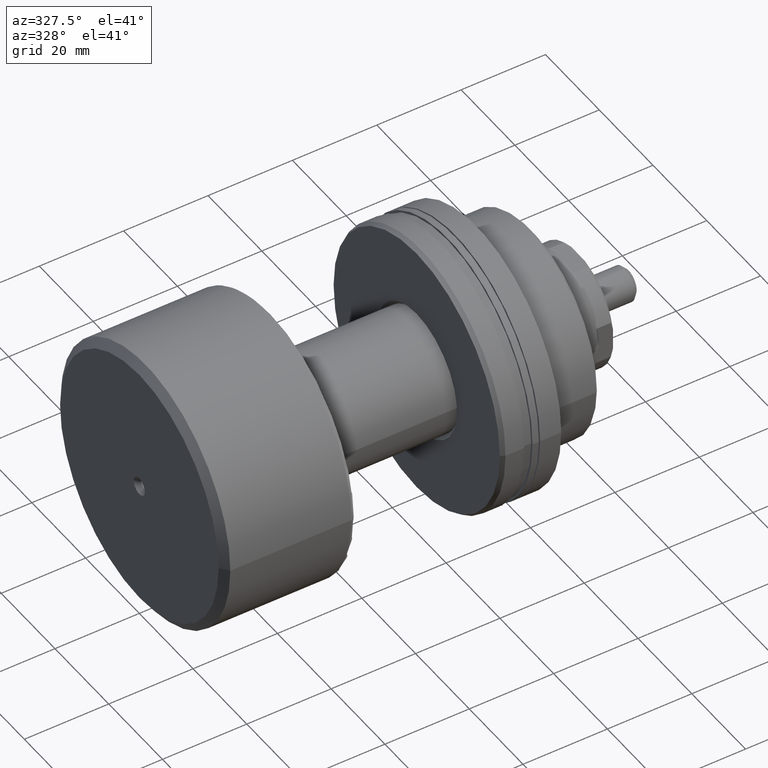
[diagram: clean part render]
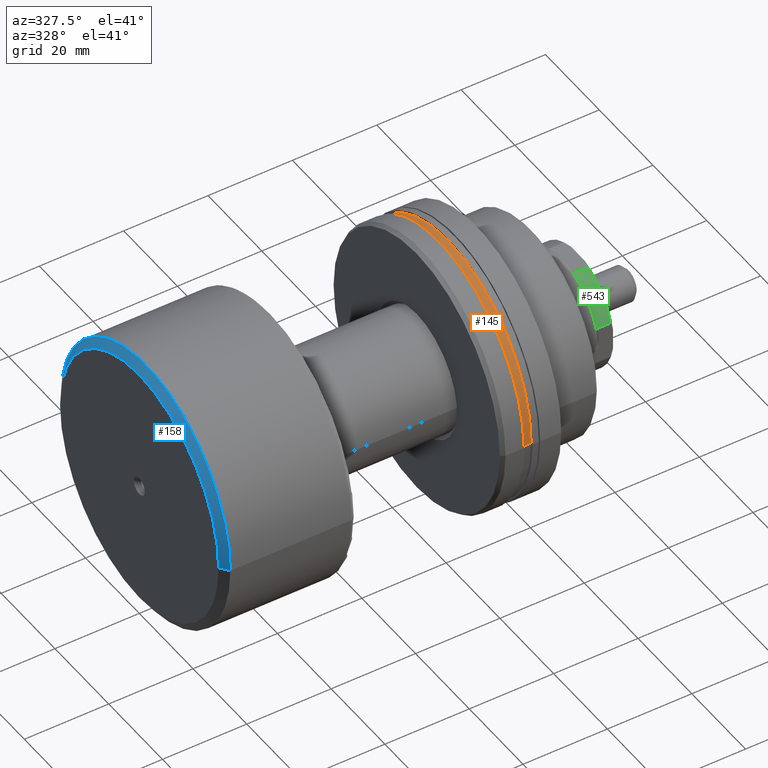
[diagram: same view with three faces highlighted in distinct colors, each labeled with its STEP entity id]
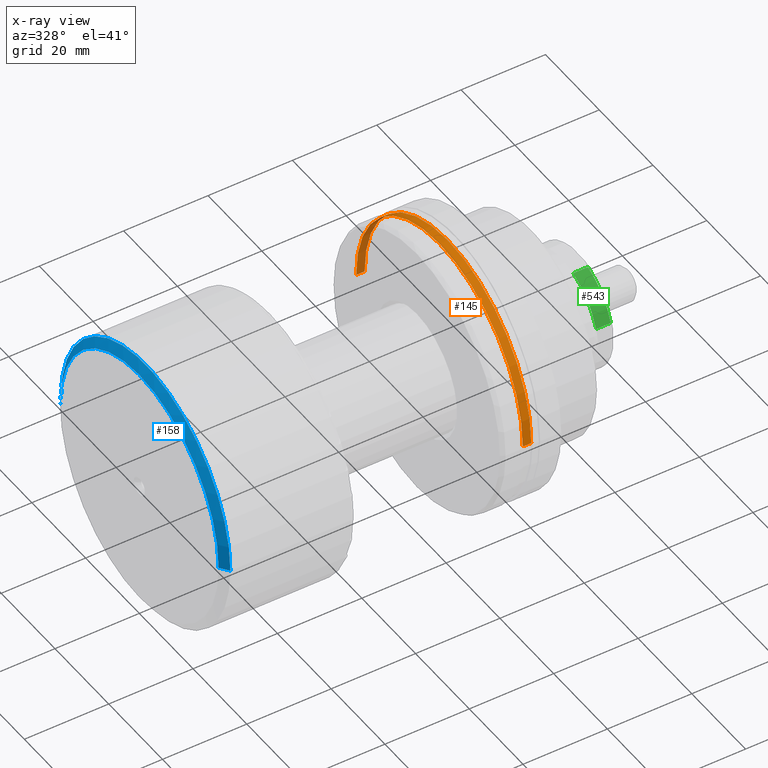
[diagram: x-ray of the same camera — body ghosted, the three highlighted faces saturated]
A machine part, auxiliary view with three faces highlighted in distinct colors.
The next image is the same camera in x-ray (body ghosted, the three faces saturated) — at least one of them is partly hidden behind the body in this view.
Their STEP definitions:

[orange] entity #145 — the highlighted cylindrical surface (partial cylindrical patch) has radius 31 mm, axis along (1, 0, 0).
#16 = ORIENTED_EDGE ( 'NONE', *, *, #300, .F. ) ;
#30 = VERTEX_POINT ( 'NONE', #1813 ) ;
#72 = DIRECTION ( 'NONE',  ( 1.000000000000000000, 1.931394410353556421E-15, -0.000000000000000000 ) ) ;
#119 = ORIENTED_EDGE ( 'NONE', *, *, #1238, .T. ) ;
#145 = ADVANCED_FACE ( 'NONE', ( #1271 ), #609, .T. ) ;
#300 = EDGE_CURVE ( 'NONE', #30, #935, #2352, .T. ) ;
#365 = EDGE_LOOP ( 'NONE', ( #1426, #119, #1185, #16 ) ) ;
#488 = AXIS2_PLACEMENT_3D ( 'NONE', #788, #1041, #1457 ) ;
#609 = CYLINDRICAL_SURFACE ( 'NONE', #488, 31.00000000000000000 ) ;
#788 = CARTESIAN_POINT ( 'NONE',  ( -30.28002276692732408, 0.000000000000000000, 0.000000000000000000 ) ) ;
#824 = DIRECTION ( 'NONE',  ( -1.902599941393917815E-15, 1.000000000000000000, 0.000000000000000000 ) ) ;
#825 = CARTESIAN_POINT ( 'NONE',  ( -24.80000000000012150, 31.00000000000001421, 0.000000000000000000 ) ) ;
#835 = DIRECTION ( 'NONE',  ( 1.000000000000000000, 1.931394410353556421E-15, -0.000000000000000000 ) ) ;
#919 = CARTESIAN_POINT ( 'NONE',  ( -30.28002276692726369, -31.00000000000000000, 3.796405077356795115E-15 ) ) ;
#935 = VERTEX_POINT ( 'NONE', #825 ) ;
#937 = VERTEX_POINT ( 'NONE', #1660 ) ;
#1009 = CARTESIAN_POINT ( 'NONE',  ( -26.80878161770243651, 6.704335752602198479E-15, 0.000000000000000000 ) ) ;
#1041 = DIRECTION ( 'NONE',  ( 1.000000000000000000, 1.931394410353556421E-15, -0.000000000000000000 ) ) ;
#1133 = VECTOR ( 'NONE', #72, 1000.000000000000000 ) ;
#1185 = ORIENTED_EDGE ( 'NONE', *, *, #2220, .F. ) ;
#1238 = EDGE_CURVE ( 'NONE', #2305, #937, #2444, .T. ) ;
#1271 = FACE_OUTER_BOUND ( 'NONE', #365, .T. ) ;
#1368 = CIRCLE ( 'NONE', #1849, 31.00000000000000355 ) ;
#1426 = ORIENTED_EDGE ( 'NONE', *, *, #1864, .T. ) ;
#1457 = DIRECTION ( 'NONE',  ( -1.902599941393917420E-15, 1.000000000000000000, 0.000000000000000000 ) ) ;
#1587 = AXIS2_PLACEMENT_3D ( 'NONE', #1009, #1856, #824 ) ;
#1599 = CARTESIAN_POINT ( 'NONE',  ( -26.80878161770237966, -30.99999999999998934, 3.796405077356795115E-15 ) ) ;
#1660 = CARTESIAN_POINT ( 'NONE',  ( -24.80000000000000426, -30.99999999999999289, 3.796405077356795115E-15 ) ) ;
#1753 = VECTOR ( 'NONE', #835, 1000.000000000000000 ) ;
#1813 = CARTESIAN_POINT ( 'NONE',  ( -26.80878161770249690, 31.00000000000000355, 0.000000000000000000 ) ) ;
#1849 = AXIS2_PLACEMENT_3D ( 'NONE', #2478, #2230, #2669 ) ;
#1856 = DIRECTION ( 'NONE',  ( 1.000000000000000000, 1.931394410353556421E-15, -0.000000000000000000 ) ) ;
#1864 = EDGE_CURVE ( 'NONE', #30, #2305, #2248, .T. ) ;
#2008 = CARTESIAN_POINT ( 'NONE',  ( -30.28002276692738448, 31.00000000000000000, 0.000000000000000000 ) ) ;
#2220 = EDGE_CURVE ( 'NONE', #935, #937, #1368, .T. ) ;
#2230 = DIRECTION ( 'NONE',  ( 1.000000000000000000, 1.931394410353556421E-15, -0.000000000000000000 ) ) ;
#2248 = CIRCLE ( 'NONE', #1587, 30.99999999999999645 ) ;
#2305 = VERTEX_POINT ( 'NONE', #1599 ) ;
#2352 = LINE ( 'NONE', #2008, #1753 ) ;
#2444 = LINE ( 'NONE', #919, #1133 ) ;
#2478 = CARTESIAN_POINT ( 'NONE',  ( -24.80000000000006111, 1.058408534065354328E-14, 0.000000000000000000 ) ) ;
#2669 = DIRECTION ( 'NONE',  ( -1.902599941393917420E-15, 1.000000000000000000, 0.000000000000000000 ) ) ;

[blue] entity #158 — the highlighted conical surface has half-angle 53.13 deg.
#29 = CARTESIAN_POINT ( 'NONE',  ( 1.500000000000003775, -31.50000000000000000, 3.857637417314162689E-15 ) ) ;
#143 = CARTESIAN_POINT ( 'NONE',  ( 1.500000000000003331, 31.50000000000000000, 0.000000000000000000 ) ) ;
#158 = ADVANCED_FACE ( 'NONE', ( #2077 ), #1214, .T. ) ;
#161 = CARTESIAN_POINT ( 'NONE',  ( 3.297193072474317133E-15, 3.526487535044219306E-32, 0.000000000000000000 ) ) ;
#257 = ORIENTED_EDGE ( 'NONE', *, *, #1783, .T. ) ;
#268 = DIRECTION ( 'NONE',  ( 0.5999999999999996447, -0.8000000000000002665, 9.797174393178828616E-17 ) ) ;
#345 = DIRECTION ( 'NONE',  ( -1.000000000000000000, -1.069542322069065801E-17, -0.000000000000000000 ) ) ;
#359 = DIRECTION ( 'NONE',  ( 1.000000000000000000, 1.069542322069065801E-17, 0.000000000000000000 ) ) ;
#408 = CIRCLE ( 'NONE', #2062, 31.50000000000000000 ) ;
#434 = EDGE_LOOP ( 'NONE', ( #2215, #257, #526, #513 ) ) ;
#448 = VERTEX_POINT ( 'NONE', #143 ) ;
#513 = ORIENTED_EDGE ( 'NONE', *, *, #640, .F. ) ;
#526 = ORIENTED_EDGE ( 'NONE', *, *, #1166, .T. ) ;
#640 = EDGE_CURVE ( 'NONE', #822, #448, #2314, .T. ) ;
#732 = LINE ( 'NONE', #1345, #2606 ) ;
#765 = VERTEX_POINT ( 'NONE', #29 ) ;
#779 = CARTESIAN_POINT ( 'NONE',  ( 3.297193072474317133E-15, 3.526487535044219306E-32, 0.000000000000000000 ) ) ;
#807 = CIRCLE ( 'NONE', #1671, 29.50000000000000000 ) ;
#822 = VERTEX_POINT ( 'NONE', #905 ) ;
#896 = VECTOR ( 'NONE', #1264, 1000.000000000000000 ) ;
#905 = CARTESIAN_POINT ( 'NONE',  ( 2.981678087463943057E-15, 29.50000000000000000, 0.000000000000000000 ) ) ;
#942 = DIRECTION ( 'NONE',  ( -1.000000000000000000, -1.069542322069065801E-17, -0.000000000000000000 ) ) ;
#1150 = CARTESIAN_POINT ( 'NONE',  ( 1.500000000000003553, 1.604313483103602168E-17, 0.000000000000000000 ) ) ;
#1166 = EDGE_CURVE ( 'NONE', #765, #448, #408, .T. ) ;
#1214 = CONICAL_SURFACE ( 'NONE', #2010, 29.50000000000000000, 0.9272952180016126311 ) ;
#1264 = DIRECTION ( 'NONE',  ( 0.5999999999999996447, 0.8000000000000002665, 0.000000000000000000 ) ) ;
#1345 = CARTESIAN_POINT ( 'NONE',  ( 3.612708057484691604E-15, -29.50000000000000000, 3.612708057484691604E-15 ) ) ;
#1422 = DIRECTION ( 'NONE',  ( 1.376764663473656463E-17, -1.000000000000000000, 0.000000000000000000 ) ) ;
#1671 = AXIS2_PLACEMENT_3D ( 'NONE', #779, #345, #1838 ) ;
#1688 = CARTESIAN_POINT ( 'NONE',  ( 3.612708057484691604E-15, -29.50000000000000000, 3.735172737399426752E-15 ) ) ;
#1783 = EDGE_CURVE ( 'NONE', #2121, #765, #732, .T. ) ;
#1838 = DIRECTION ( 'NONE',  ( 1.069542322069065647E-17, -1.000000000000000000, 0.000000000000000000 ) ) ;
#1878 = EDGE_CURVE ( 'NONE', #2121, #822, #807, .T. ) ;
#2010 = AXIS2_PLACEMENT_3D ( 'NONE', #161, #359, #2486 ) ;
#2062 = AXIS2_PLACEMENT_3D ( 'NONE', #1150, #942, #1422 ) ;
#2077 = FACE_OUTER_BOUND ( 'NONE', #434, .T. ) ;
#2121 = VERTEX_POINT ( 'NONE', #1688 ) ;
#2215 = ORIENTED_EDGE ( 'NONE', *, *, #1878, .F. ) ;
#2314 = LINE ( 'NONE', #2543, #896 ) ;
#2486 = DIRECTION ( 'NONE',  ( -1.069542322069065647E-17, 1.000000000000000000, 0.000000000000000000 ) ) ;
#2543 = CARTESIAN_POINT ( 'NONE',  ( 2.981678087463943057E-15, 29.50000000000000000, 0.000000000000000000 ) ) ;
#2606 = VECTOR ( 'NONE', #268, 1000.000000000000000 ) ;

[green] entity #543 — the highlighted cylindrical surface (partial cylindrical patch) has radius 13.75 mm, axis along (-1, -0, -0).
#127 = DIRECTION ( 'NONE',  ( 1.069542322069065801E-17, -1.000000000000000000, 0.000000000000000000 ) ) ;
#354 = EDGE_CURVE ( 'NONE', #1631, #2701, #1298, .T. ) ;
#358 = CIRCLE ( 'NONE', #1888, 13.75000000000000178 ) ;
#543 = ADVANCED_FACE ( 'NONE', ( #572 ), #1626, .T. ) ;
#572 = FACE_OUTER_BOUND ( 'NONE', #1416, .T. ) ;
#574 = AXIS2_PLACEMENT_3D ( 'NONE', #1449, #1424, #127 ) ;
#826 = DIRECTION ( 'NONE',  ( -1.000000000000000000, -1.069542322069054245E-17, -0.000000000000000000 ) ) ;
#901 = CARTESIAN_POINT ( 'NONE',  ( 99.99999999999978684, -13.00000000000112621, 4.479118216795496821 ) ) ;
#918 = DIRECTION ( 'NONE',  ( 1.000000000000000000, -1.657264799492230625E-14, -0.000000000000000000 ) ) ;
#947 = AXIS2_PLACEMENT_3D ( 'NONE', #1385, #2426, #970 ) ;
#970 = DIRECTION ( 'NONE',  ( 0.000000000000000000, -1.000000000000000000, 0.000000000000000000 ) ) ;
#1090 = CARTESIAN_POINT ( 'NONE',  ( 103.5000000000000142, -4.479118216794137020, 13.00000000000052935 ) ) ;
#1247 = ORIENTED_EDGE ( 'NONE', *, *, #354, .T. ) ;
#1298 = LINE ( 'NONE', #2567, #2015 ) ;
#1307 = ORIENTED_EDGE ( 'NONE', *, *, #1749, .F. ) ;
#1371 = ORIENTED_EDGE ( 'NONE', *, *, #2547, .F. ) ;
#1385 = CARTESIAN_POINT ( 'NONE',  ( 100.0000000000001421, 1.069542322069067372E-15, 0.000000000000000000 ) ) ;
#1415 = EDGE_CURVE ( 'NONE', #2701, #2614, #358, .T. ) ;
#1416 = EDGE_LOOP ( 'NONE', ( #1247, #2292, #1371, #1307 ) ) ;
#1424 = DIRECTION ( 'NONE',  ( -1.000000000000000000, -1.069542322069065801E-17, -0.000000000000000000 ) ) ;
#1449 = CARTESIAN_POINT ( 'NONE',  ( 0.000000000000000000, 0.000000000000000000, 0.000000000000000000 ) ) ;
#1490 = CARTESIAN_POINT ( 'NONE',  ( 99.99999999999994316, -4.479118216794079288, 13.00000000000052935 ) ) ;
#1532 = LINE ( 'NONE', #2598, #1674 ) ;
#1626 = CYLINDRICAL_SURFACE ( 'NONE', #574, 13.75000000000000178 ) ;
#1631 = VERTEX_POINT ( 'NONE', #901 ) ;
#1650 = CARTESIAN_POINT ( 'NONE',  ( 103.5000000000000142, 1.106976303341483222E-15, 0.000000000000000000 ) ) ;
#1674 = VECTOR ( 'NONE', #918, 1000.000000000000000 ) ;
#1691 = DIRECTION ( 'NONE',  ( 0.000000000000000000, -1.000000000000000000, 0.000000000000000000 ) ) ;
#1749 = EDGE_CURVE ( 'NONE', #1631, #2437, #2245, .T. ) ;
#1888 = AXIS2_PLACEMENT_3D ( 'NONE', #1650, #826, #1691 ) ;
#2015 = VECTOR ( 'NONE', #2580, 1000.000000000000000 ) ;
#2245 = CIRCLE ( 'NONE', #947, 13.75000000000000178 ) ;
#2292 = ORIENTED_EDGE ( 'NONE', *, *, #1415, .T. ) ;
#2426 = DIRECTION ( 'NONE',  ( -1.000000000000000000, -1.069542322069065801E-17, -0.000000000000000000 ) ) ;
#2437 = VERTEX_POINT ( 'NONE', #1490 ) ;
#2473 = CARTESIAN_POINT ( 'NONE',  ( 103.5000000000000142, -13.00000000000118483, 4.479118216795496821 ) ) ;
#2547 = EDGE_CURVE ( 'NONE', #2437, #2614, #1532, .T. ) ;
#2567 = CARTESIAN_POINT ( 'NONE',  ( 99.99999999999978684, -13.00000000000112621, 4.479118216795496821 ) ) ;
#2580 = DIRECTION ( 'NONE',  ( 1.000000000000000000, -1.657264799492230625E-14, -0.000000000000000000 ) ) ;
#2598 = CARTESIAN_POINT ( 'NONE',  ( 99.99999999999994316, -4.479118216794079288, 13.00000000000052935 ) ) ;
#2614 = VERTEX_POINT ( 'NONE', #1090 ) ;
#2701 = VERTEX_POINT ( 'NONE', #2473 ) ;